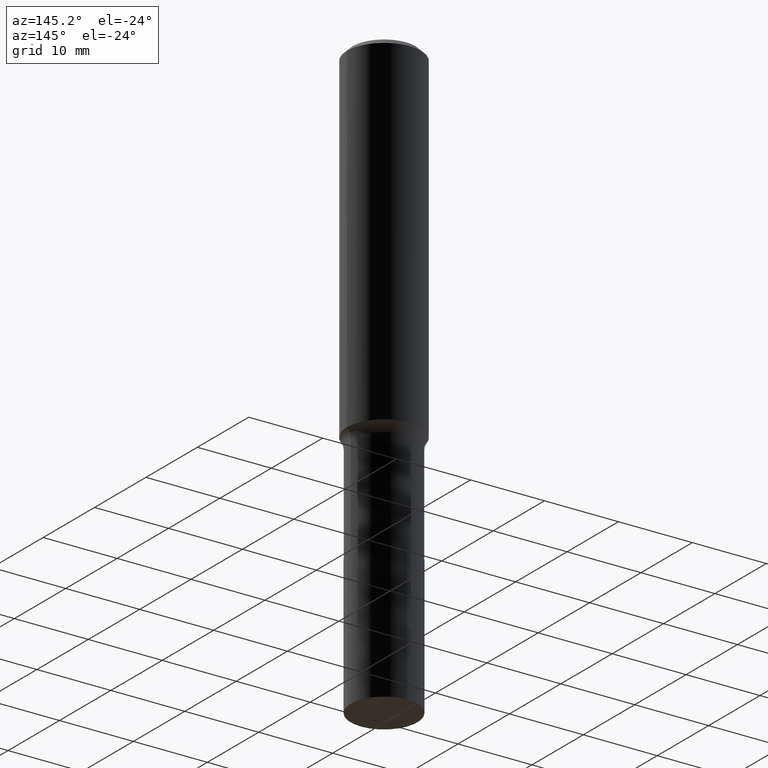
[diagram: clean part render]
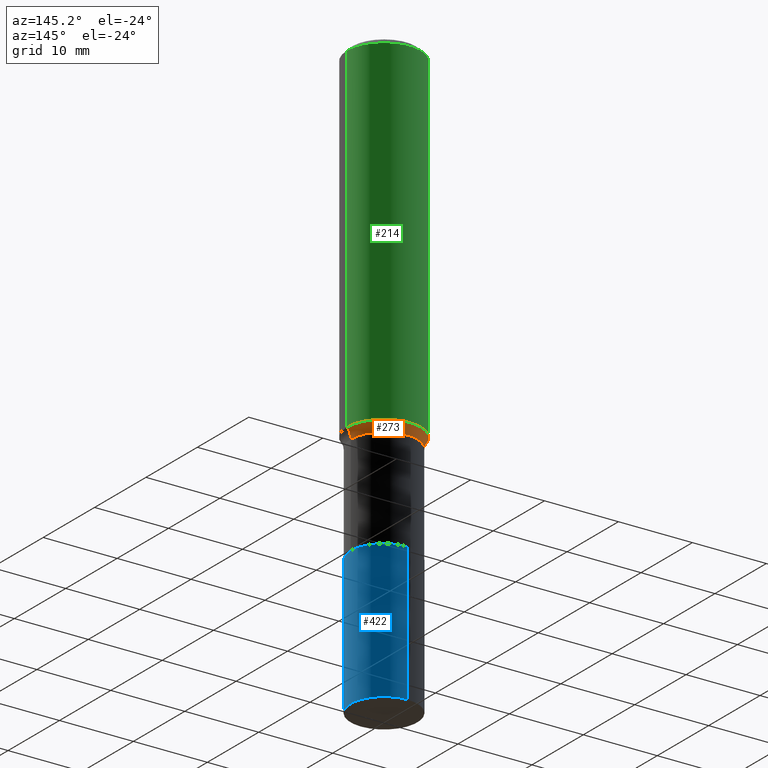
[diagram: same view with three faces highlighted in distinct colors, each labeled with its STEP entity id]
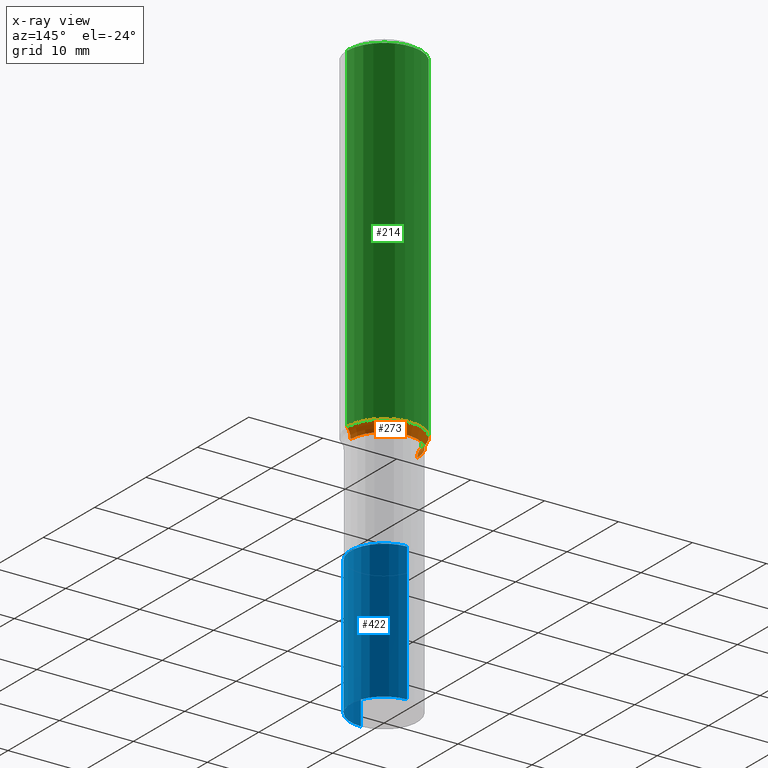
[diagram: x-ray of the same camera — body ghosted, the three highlighted faces saturated]
A machine part, auxiliary view with three faces highlighted in distinct colors.
The next image is the same camera in x-ray (body ghosted, the three faces saturated) — at least one of them is partly hidden behind the body in this view.
Their STEP definitions:

[orange] entity #273 — the highlighted toroidal blend (fillet) surface has major radius 6.5316 mm and minor (blend) radius 2.032 mm.
#12 = DIRECTION ( 'NONE',  ( -2.445468806185136597E-29, 3.491481338843145583E-15, 1.000000000000000000 ) ) ;
#25 = EDGE_CURVE ( 'NONE', #216, #330, #115, .T. ) ;
#45 = EDGE_CURVE ( 'NONE', #216, #111, #281, .T. ) ;
#46 = ORIENTED_EDGE ( 'NONE', *, *, #25, .F. ) ;
#84 = DIRECTION ( 'NONE',  ( 7.105427357601001859E-15, 1.000000000000000000, -3.491481338843145583E-15 ) ) ;
#92 = DIRECTION ( 'NONE',  ( -2.445468806185136597E-29, 3.491481338843145583E-15, 1.000000000000000000 ) ) ;
#94 = TOROIDAL_SURFACE ( 'NONE', #356, 0.2571499999999999342, 0.07999999999999998779 ) ;
#96 = DIRECTION ( 'NONE',  ( 1.000000000000000000, -6.982962677686265922E-15, 4.883557194083112901E-29 ) ) ;
#111 = VERTEX_POINT ( 'NONE', #157 ) ;
#115 = CIRCLE ( 'NONE', #175, 0.1968500000000001915 ) ;
#116 = VERTEX_POINT ( 'NONE', #292 ) ;
#118 = EDGE_CURVE ( 'NONE', #330, #116, #453, .T. ) ;
#129 = AXIS2_PLACEMENT_3D ( 'NONE', #414, #347, #415 ) ;
#134 = CARTESIAN_POINT ( 'NONE',  ( 4.606040496449705381E-29, -6.576205101711065057E-15, -1.883500000000000174 ) ) ;
#152 = ORIENTED_EDGE ( 'NONE', *, *, #118, .F. ) ;
#157 = CARTESIAN_POINT ( 'NONE',  ( 0.1771499999999999742, -7.813236940063187450E-15, -1.883500000000000174 ) ) ;
#161 = CARTESIAN_POINT ( 'NONE',  ( 0.1968500000000001915, -7.767243999372021400E-15, -1.830927098234927053 ) ) ;
#175 = AXIS2_PLACEMENT_3D ( 'NONE', #410, #12, #202 ) ;
#202 = DIRECTION ( 'NONE',  ( 1.000000000000000000, -6.982962677686266711E-15, 0.000000000000000000 ) ) ;
#216 = VERTEX_POINT ( 'NONE', #161 ) ;
#227 = FACE_OUTER_BOUND ( 'NONE', #455, .T. ) ;
#232 = CARTESIAN_POINT ( 'NONE',  ( 4.606040496449705381E-29, -6.576205101711065057E-15, -1.883500000000000174 ) ) ;
#240 = EDGE_CURVE ( 'NONE', #111, #116, #416, .T. ) ;
#261 = ORIENTED_EDGE ( 'NONE', *, *, #45, .T. ) ;
#268 = AXIS2_PLACEMENT_3D ( 'NONE', #333, #84, #328 ) ;
#273 = ADVANCED_FACE ( 'NONE', ( #227 ), #94, .F. ) ;
#281 = CIRCLE ( 'NONE', #129, 0.07999999999999996003 ) ;
#282 = CARTESIAN_POINT ( 'NONE',  ( -0.1968500000000001915, -4.993944420925722004E-15, -1.830927098234927053 ) ) ;
#292 = CARTESIAN_POINT ( 'NONE',  ( -0.1771499999999999742, -6.249005866515399536E-15, -1.883500000000000174 ) ) ;
#328 = DIRECTION ( 'NONE',  ( -1.000000000000000000, 7.105427357601001859E-15, 0.000000000000000000 ) ) ;
#330 = VERTEX_POINT ( 'NONE', #282 ) ;
#332 = AXIS2_PLACEMENT_3D ( 'NONE', #134, #92, #448 ) ;
#333 = CARTESIAN_POINT ( 'NONE',  ( -0.2571499999999999342, -4.749044456703968291E-15, -1.883500000000000174 ) ) ;
#344 = DIRECTION ( 'NONE',  ( -2.445468806185136597E-29, 3.491481338843145583E-15, 1.000000000000000000 ) ) ;
#347 = DIRECTION ( 'NONE',  ( -6.982962677686266711E-15, -1.000000000000000000, 3.491481338843145583E-15 ) ) ;
#356 = AXIS2_PLACEMENT_3D ( 'NONE', #232, #344, #96 ) ;
#410 = CARTESIAN_POINT ( 'NONE',  ( 4.477475105132583677E-29, -6.392647796269479003E-15, -1.830927098234927053 ) ) ;
#414 = CARTESIAN_POINT ( 'NONE',  ( 0.2571499999999999342, -8.371873954278089103E-15, -1.883500000000000174 ) ) ;
#415 = DIRECTION ( 'NONE',  ( 1.000000000000000000, -6.982962677686262766E-15, 0.000000000000000000 ) ) ;
#416 = CIRCLE ( 'NONE', #332, 0.1771499999999999742 ) ;
#440 = ORIENTED_EDGE ( 'NONE', *, *, #240, .T. ) ;
#448 = DIRECTION ( 'NONE',  ( 1.000000000000000000, -6.982962677686268288E-15, 0.000000000000000000 ) ) ;
#453 = CIRCLE ( 'NONE', #268, 0.07999999999999996003 ) ;
#455 = EDGE_LOOP ( 'NONE', ( #152, #46, #261, #440 ) ) ;

[blue] entity #422 — the highlighted cylindrical surface (partial cylindrical patch) has radius 4.4996 mm, axis along (-0, 0, 1).
#2 = CARTESIAN_POINT ( 'NONE',  ( 1.258726456399094407E-15, 0.1771499999999915920, -2.417600000000000637 ) ) ;
#9 = EDGE_CURVE ( 'NONE', #185, #43, #102, .T. ) ;
#43 = VERTEX_POINT ( 'NONE', #376 ) ;
#61 = CARTESIAN_POINT ( 'NONE',  ( 5.912165385833187270E-29, -8.441005284787188533E-15, -2.417600000000000193 ) ) ;
#80 = VECTOR ( 'NONE', #191, 39.37007874015748143 ) ;
#86 = LINE ( 'NONE', #364, #80 ) ;
#95 = AXIS2_PLACEMENT_3D ( 'NONE', #61, #171, #450 ) ;
#102 = CIRCLE ( 'NONE', #367, 0.1771500000000000019 ) ;
#124 = VERTEX_POINT ( 'NONE', #2 ) ;
#160 = VERTEX_POINT ( 'NONE', #254 ) ;
#171 = DIRECTION ( 'NONE',  ( -2.446041617737093913E-29, 3.490661040098333894E-15, 1.000000000000000000 ) ) ;
#179 = EDGE_CURVE ( 'NONE', #43, #124, #86, .T. ) ;
#185 = VERTEX_POINT ( 'NONE', #295 ) ;
#191 = DIRECTION ( 'NONE',  ( -2.446041617737093913E-29, 3.490661040098333500E-15, 1.000000000000000000 ) ) ;
#196 = ORIENTED_EDGE ( 'NONE', *, *, #404, .F. ) ;
#224 = ORIENTED_EDGE ( 'NONE', *, *, #179, .T. ) ;
#235 = FACE_OUTER_BOUND ( 'NONE', #451, .T. ) ;
#247 = ORIENTED_EDGE ( 'NONE', *, *, #298, .F. ) ;
#254 = CARTESIAN_POINT ( 'NONE',  ( -1.237031838352062835E-15, -0.1771500000000084396, -2.417599999999999749 ) ) ;
#269 = CIRCLE ( 'NONE', #395, 0.1771500000000000019 ) ;
#279 = LINE ( 'NONE', #319, #308 ) ;
#293 = ORIENTED_EDGE ( 'NONE', *, *, #9, .T. ) ;
#295 = CARTESIAN_POINT ( 'NONE',  ( -1.237031838352045086E-15, -0.1771500000000110209, -3.149599999999998623 ) ) ;
#298 = EDGE_CURVE ( 'NONE', #160, #124, #269, .T. ) ;
#304 = CARTESIAN_POINT ( 'NONE',  ( 7.702667850016737193E-29, -1.099616916613916713E-14, -3.149599999999999067 ) ) ;
#308 = VECTOR ( 'NONE', #423, 39.37007874015748143 ) ;
#309 = DIRECTION ( 'NONE',  ( -6.982962677686265922E-15, -1.000000000000000000, 3.084220145260246224E-15 ) ) ;
#319 = CARTESIAN_POINT ( 'NONE',  ( -1.237031838352062835E-15, -0.1771500000000084396, -2.417599999999999749 ) ) ;
#340 = DIRECTION ( 'NONE',  ( -2.446041617737093913E-29, 3.490661040098333894E-15, 1.000000000000000000 ) ) ;
#364 = CARTESIAN_POINT ( 'NONE',  ( 1.258726456399076460E-15, 0.1771499999999915920, -2.417600000000000637 ) ) ;
#367 = AXIS2_PLACEMENT_3D ( 'NONE', #304, #340, #445 ) ;
#376 = CARTESIAN_POINT ( 'NONE',  ( 1.258726456399085335E-15, 0.1771499999999890107, -3.149599999999999511 ) ) ;
#384 = CARTESIAN_POINT ( 'NONE',  ( 5.912165385833187270E-29, -8.441005284787188533E-15, -2.417600000000000193 ) ) ;
#386 = CYLINDRICAL_SURFACE ( 'NONE', #95, 0.1771500000000000019 ) ;
#395 = AXIS2_PLACEMENT_3D ( 'NONE', #384, #417, #309 ) ;
#404 = EDGE_CURVE ( 'NONE', #185, #160, #279, .T. ) ;
#417 = DIRECTION ( 'NONE',  ( -2.446041617737093913E-29, 3.490661040098333894E-15, 1.000000000000000000 ) ) ;
#422 = ADVANCED_FACE ( 'NONE', ( #235 ), #386, .T. ) ;
#423 = DIRECTION ( 'NONE',  ( -2.446041617737093913E-29, 3.490661040098333500E-15, 1.000000000000000000 ) ) ;
#445 = DIRECTION ( 'NONE',  ( -6.982962677686265922E-15, -1.000000000000000000, 3.084220145260246224E-15 ) ) ;
#450 = DIRECTION ( 'NONE',  ( -6.982962677686265922E-15, -1.000000000000000000, 3.084220145260246224E-15 ) ) ;
#451 = EDGE_LOOP ( 'NONE', ( #293, #224, #247, #196 ) ) ;

[green] entity #214 — the highlighted cylindrical surface (partial cylindrical patch) has radius 5 mm, axis along (-0, 0, 1).
#12 = DIRECTION ( 'NONE',  ( -2.445468806185136597E-29, 3.491481338843145583E-15, 1.000000000000000000 ) ) ;
#18 = CARTESIAN_POINT ( 'NONE',  ( -0.1968500000000000527, -1.849167880407326768E-15, -0.02952750000000019942 ) ) ;
#25 = EDGE_CURVE ( 'NONE', #216, #330, #115, .T. ) ;
#30 = EDGE_CURVE ( 'NONE', #216, #255, #163, .T. ) ;
#37 = CARTESIAN_POINT ( 'NONE',  ( 0.000000000000000000, 0.000000000000000000, 0.000000000000000000 ) ) ;
#55 = AXIS2_PLACEMENT_3D ( 'NONE', #337, #465, #150 ) ;
#85 = ORIENTED_EDGE ( 'NONE', *, *, #25, .T. ) ;
#89 = ORIENTED_EDGE ( 'NONE', *, *, #30, .F. ) ;
#90 = CARTESIAN_POINT ( 'NONE',  ( 0.1968500000000000527, -1.477690918335233688E-15, -0.02952750000000019942 ) ) ;
#115 = CIRCLE ( 'NONE', #175, 0.1968500000000001915 ) ;
#145 = EDGE_CURVE ( 'NONE', #255, #223, #217, .T. ) ;
#150 = DIRECTION ( 'NONE',  ( 1.000000000000000000, -6.982962677686266711E-15, 0.000000000000000000 ) ) ;
#161 = CARTESIAN_POINT ( 'NONE',  ( 0.1968500000000001915, -7.767243999372021400E-15, -1.830927098234927053 ) ) ;
#163 = LINE ( 'NONE', #265, #302 ) ;
#175 = AXIS2_PLACEMENT_3D ( 'NONE', #410, #12, #202 ) ;
#183 = DIRECTION ( 'NONE',  ( 1.000000000000000000, -6.982962677686266711E-15, 4.876176775795935793E-29 ) ) ;
#202 = DIRECTION ( 'NONE',  ( 1.000000000000000000, -6.982962677686266711E-15, 0.000000000000000000 ) ) ;
#214 = ADVANCED_FACE ( 'NONE', ( #248 ), #398, .T. ) ;
#216 = VERTEX_POINT ( 'NONE', #161 ) ;
#217 = CIRCLE ( 'NONE', #55, 0.1968500000000000527 ) ;
#223 = VERTEX_POINT ( 'NONE', #18 ) ;
#248 = FACE_OUTER_BOUND ( 'NONE', #258, .T. ) ;
#255 = VERTEX_POINT ( 'NONE', #90 ) ;
#258 = EDGE_LOOP ( 'NONE', ( #85, #297, #408, #89 ) ) ;
#265 = CARTESIAN_POINT ( 'NONE',  ( 0.1968500000000001082, -1.374596203102542397E-15, 9.598753983154305062E-30 ) ) ;
#282 = CARTESIAN_POINT ( 'NONE',  ( -0.1968500000000001915, -4.993944420925722004E-15, -1.830927098234927053 ) ) ;
#288 = DIRECTION ( 'NONE',  ( -2.445468806185136597E-29, 3.491481338843145583E-15, 1.000000000000000000 ) ) ;
#297 = ORIENTED_EDGE ( 'NONE', *, *, #339, .T. ) ;
#302 = VECTOR ( 'NONE', #444, 39.37007874015748143 ) ;
#315 = LINE ( 'NONE', #358, #442 ) ;
#330 = VERTEX_POINT ( 'NONE', #282 ) ;
#337 = CARTESIAN_POINT ( 'NONE',  ( 7.220858017463210361E-31, -1.030947152326916856E-16, -0.02952750000000019942 ) ) ;
#339 = EDGE_CURVE ( 'NONE', #330, #223, #315, .T. ) ;
#358 = CARTESIAN_POINT ( 'NONE',  ( -0.1968500000000001082, 1.398703375343757985E-15, -9.682923725166787881E-30 ) ) ;
#398 = CYLINDRICAL_SURFACE ( 'NONE', #412, 0.1968500000000001082 ) ;
#408 = ORIENTED_EDGE ( 'NONE', *, *, #145, .F. ) ;
#410 = CARTESIAN_POINT ( 'NONE',  ( 4.477475105132583677E-29, -6.392647796269479003E-15, -1.830927098234927053 ) ) ;
#412 = AXIS2_PLACEMENT_3D ( 'NONE', #37, #288, #183 ) ;
#442 = VECTOR ( 'NONE', #454, 39.37007874015748143 ) ;
#444 = DIRECTION ( 'NONE',  ( -2.445468806185136877E-29, 3.491481338843145188E-15, 1.000000000000000000 ) ) ;
#454 = DIRECTION ( 'NONE',  ( -2.445468806185136877E-29, 3.491481338843145188E-15, 1.000000000000000000 ) ) ;
#465 = DIRECTION ( 'NONE',  ( -2.445468806185136597E-29, 3.491481338843145583E-15, 1.000000000000000000 ) ) ;